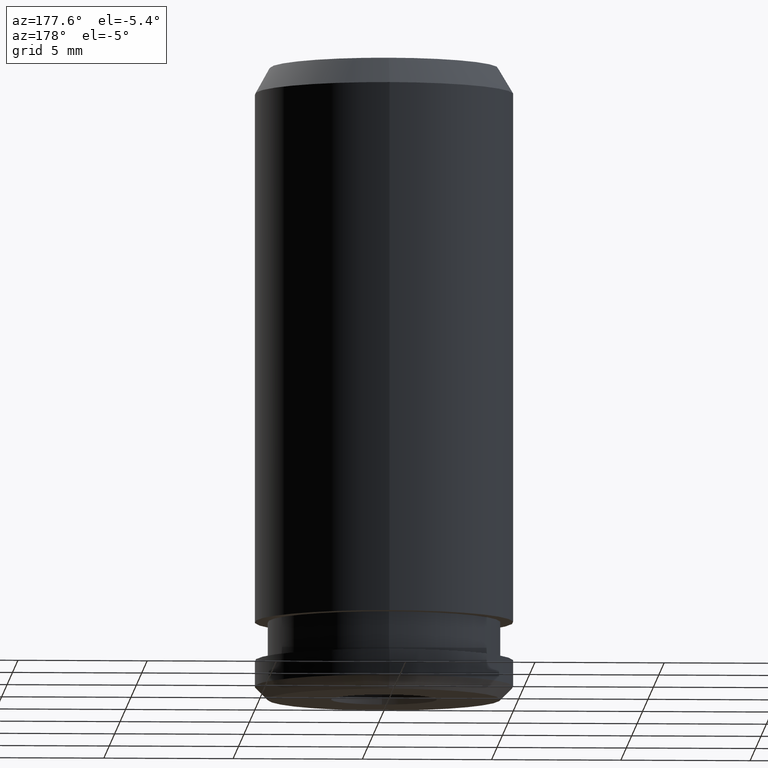
[diagram: clean part render]
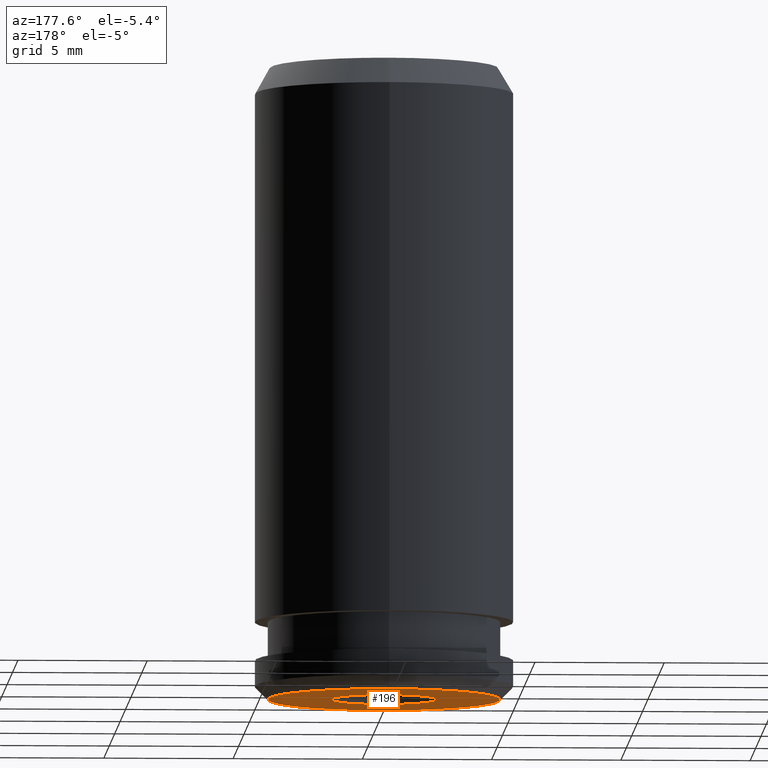
[diagram: same view with one face highlighted and labeled with its STEP entity id]
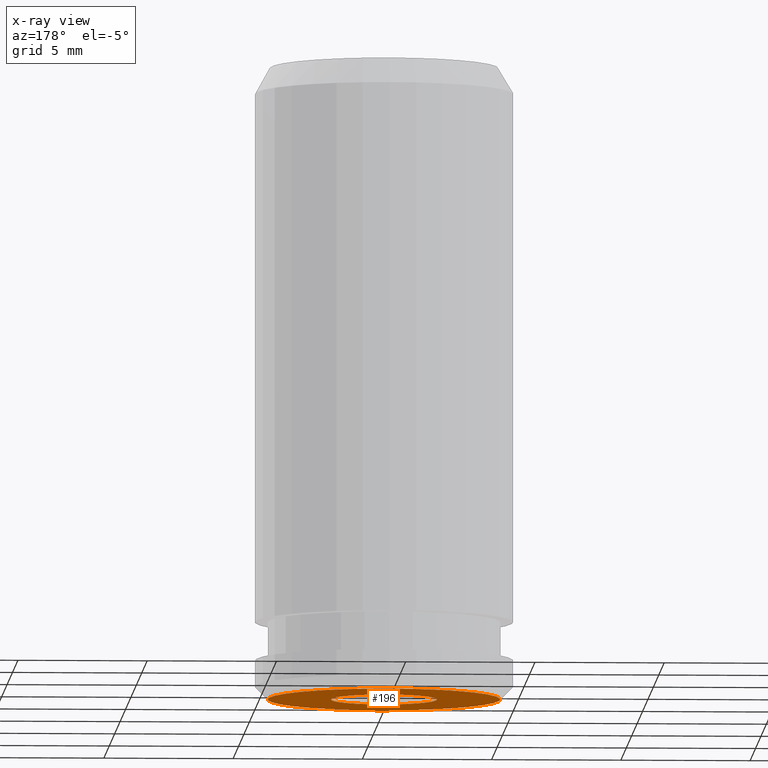
[diagram: x-ray of the same camera — body ghosted, the highlighted face saturated]
A machine part, auxiliary view. The second image highlights one B-rep face of the part: STEP entity #196.
The next image is the same camera in x-ray: the body ghosted, the highlighted face saturated — about 0% of this face is hidden behind the body in this view.
In plain terms, the highlighted planar face has unit normal (0, 0, -1).
Its self-contained STEP definition (entity closure, byte-faithful):
#122=EDGE_CURVE('NONE',#148,#156,#293,.T.);
#130=EDGE_CURVE('NONE',#184,#176,#301,.T.);
#148=VERTEX_POINT('NONE',#323);
#156=VERTEX_POINT('NONE',#333);
#166=EDGE_CURVE('NONE',#176,#184,#346,.T.);
#176=VERTEX_POINT('NONE',#356);
#184=VERTEX_POINT('NONE',#364);
#196=ADVANCED_FACE('NONE',(#377,#378),#379,.T.);
#230=EDGE_CURVE('NONE',#156,#148,#418,.T.);
#293=CIRCLE('',#483,4.5);
#301=CIRCLE('',#497,2.05);
#323=CARTESIAN_POINT('',(0.0,4.5,0.0));
#333=CARTESIAN_POINT('',(-5.81688018065629E-016,-4.5,0.0));
#346=CIRCLE('',#551,2.05);
#356=CARTESIAN_POINT('',(0.0,-2.05,0.0));
#364=CARTESIAN_POINT('',(-2.51044302533587E-016,2.05,0.0));
#377=FACE_OUTER_BOUND('',#591,.T.);
#378=FACE_BOUND('',#592,.T.);
#379=PLANE('',#593);
#418=CIRCLE('',#641,4.5);
#483=AXIS2_PLACEMENT_3D('',#699,#700,#701);
#497=AXIS2_PLACEMENT_3D('',#707,#708,#709);
#551=AXIS2_PLACEMENT_3D('',#775,#776,#777);
#591=EDGE_LOOP('',(#804,#805));
#592=EDGE_LOOP('',(#806,#807));
#593=AXIS2_PLACEMENT_3D('',#808,#809,#810);
#641=AXIS2_PLACEMENT_3D('',#865,#866,#867);
#699=CARTESIAN_POINT('',(0.0,0.0,0.0));
#700=DIRECTION('',(0.0,0.0,-1.0));
#701=DIRECTION('',(0.0,-1.0,0.0));
#707=CARTESIAN_POINT('',(0.0,0.0,0.0));
#708=DIRECTION('',(0.0,0.0,-1.0));
#709=DIRECTION('',(0.0,-1.0,0.0));
#775=CARTESIAN_POINT('',(0.0,0.0,0.0));
#776=DIRECTION('',(0.0,0.0,-1.0));
#777=DIRECTION('',(0.0,-1.0,0.0));
#804=ORIENTED_EDGE('',*,*,#122,.T.);
#805=ORIENTED_EDGE('',*,*,#230,.T.);
#806=ORIENTED_EDGE('',*,*,#166,.F.);
#807=ORIENTED_EDGE('',*,*,#130,.F.);
#808=CARTESIAN_POINT('',(-2.05,0.0,0.0));
#809=DIRECTION('',(0.0,0.0,-1.0));
#810=DIRECTION('',(-1.0,0.0,0.0));
#865=CARTESIAN_POINT('',(0.0,0.0,0.0));
#866=DIRECTION('',(0.0,0.0,-1.0));
#867=DIRECTION('',(0.0,-1.0,0.0));